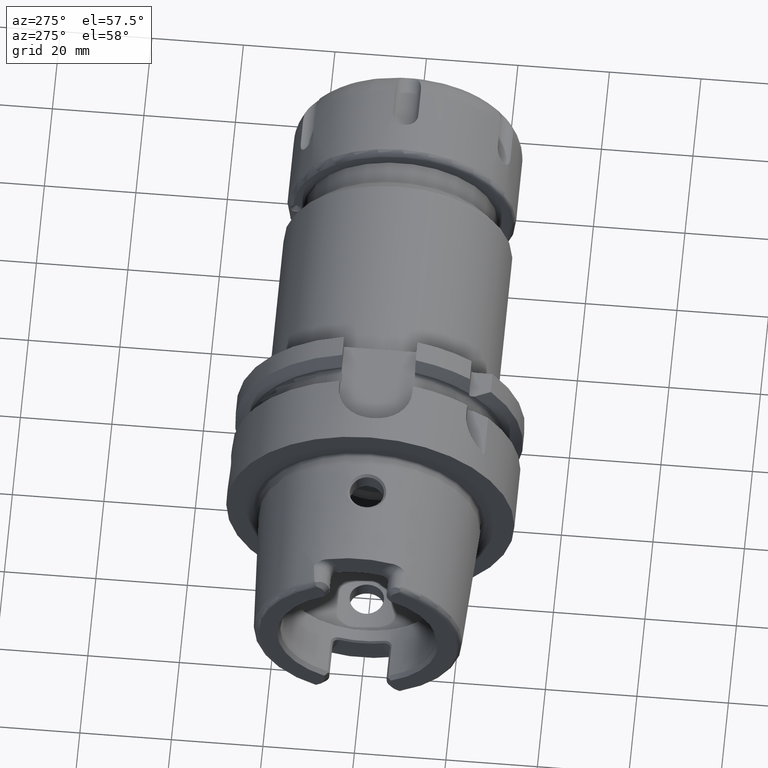
[diagram: clean part render]
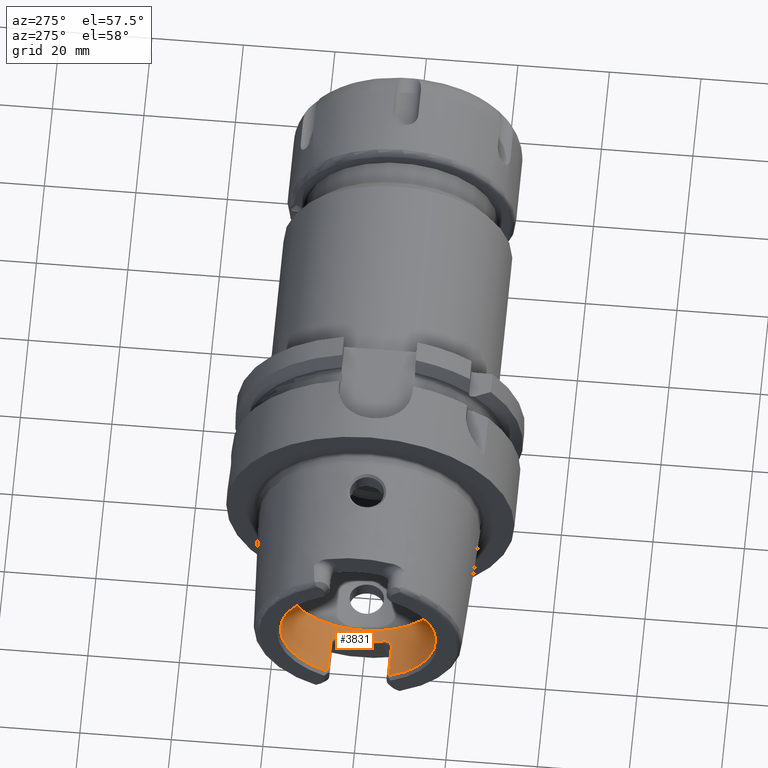
[diagram: same view with one face highlighted and labeled with its STEP entity id]
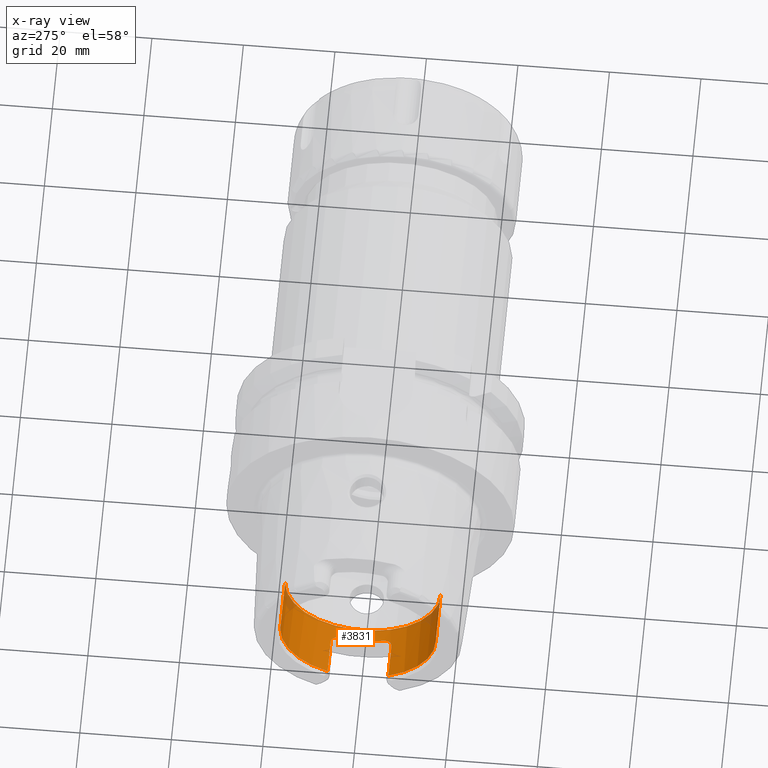
[diagram: x-ray of the same camera — body ghosted, the highlighted face saturated]
A machine part, auxiliary view. The second image highlights one B-rep face of the part: STEP entity #3831.
The next image is the same camera in x-ray: the body ghosted, the highlighted face saturated — about 5% of this face is hidden behind the body in this view.
In plain terms, the highlighted cylindrical surface (partial cylindrical patch) has radius 17 mm, axis along (1, 0, 0).
Its self-contained STEP definition (entity closure, byte-faithful):
#367=CARTESIAN_POINT('',(-3.1E1,0.E0,0.E0));
#368=DIRECTION('',(-1.E0,0.E0,0.E0));
#369=DIRECTION('',(0.E0,1.E0,0.E0));
#370=AXIS2_PLACEMENT_3D('',#367,#368,#369);
#389=CARTESIAN_POINT('',(-3.1E1,0.E0,0.E0));
#390=DIRECTION('',(-1.E0,0.E0,0.E0));
#391=DIRECTION('',(0.E0,-3.910839598454E-1,-9.203550056102E-1));
#392=AXIS2_PLACEMENT_3D('',#389,#390,#391);
#617=DIRECTION('',(1.E0,0.E0,0.E0));
#618=VECTOR('',#617,7.5E0);
#619=CARTESIAN_POINT('',(-3.1E1,-6.648427317371E0,-1.564603509537E1));
#620=LINE('',#619,#618);
#621=CARTESIAN_POINT('',(-2.171132486541E1,-4.77E0,-1.631708000838E1));
#622=CARTESIAN_POINT('',(-2.170911463045E1,-4.851899929324E0,
-1.629313806150E1));
#623=CARTESIAN_POINT('',(-2.171539985496E1,-5.014300274441E0,
-1.624433189365E1));
#624=CARTESIAN_POINT('',(-2.175723226820E1,-5.255574737127E0,
-1.616786516493E1));
#625=CARTESIAN_POINT('',(-2.183019759937E1,-5.488813832187E0,
-1.609012650164E1));
#626=CARTESIAN_POINT('',(-2.193222755914E1,-5.709311810621E0,
-1.601314455534E1));
#627=CARTESIAN_POINT('',(-2.206208908479E1,-5.913640570765E0,
-1.593873381343E1));
#628=CARTESIAN_POINT('',(-2.221579663552E1,-6.097621457296E0,
-1.586916363348E1));
#629=CARTESIAN_POINT('',(-2.239004084082E1,-6.257927374534E0,
-1.580654307494E1));
#630=CARTESIAN_POINT('',(-2.258287946713E1,-6.394281114327E0,
-1.575179653388E1));
#631=CARTESIAN_POINT('',(-2.279414325254E1,-6.504885265694E0,
-1.570637036291E1));
#632=CARTESIAN_POINT('',(-2.302072491693E1,-6.586740689310E0,
-1.567215753589E1));
#633=CARTESIAN_POINT('',(-2.325841410654E1,-6.637201205541E0,
-1.565081274977E1));
#634=CARTESIAN_POINT('',(-2.341884128981E1,-6.648427317371E0,
-1.564603509537E1));
#635=CARTESIAN_POINT('',(-2.35E1,-6.648427317371E0,-1.564603509537E1));
#637=CARTESIAN_POINT('',(-2.171132486541E1,4.77E0,-1.631708000838E1));
#638=CARTESIAN_POINT('',(-2.171132486541E1,4.151241293882E0,-1.649796280277E1));
#639=CARTESIAN_POINT('',(-2.171132889067E1,2.893125957956E0,-1.678926713017E1));
#640=CARTESIAN_POINT('',(-2.171132738120E1,9.685489423330E-1,
-1.700915920873E1));
#641=CARTESIAN_POINT('',(-2.171132738120E1,-9.685489423330E-1,
-1.700915920873E1));
#642=CARTESIAN_POINT('',(-2.171132889067E1,-2.893125957956E0,
-1.678926713017E1));
#643=CARTESIAN_POINT('',(-2.171132486541E1,-4.151241293883E0,
-1.649796280277E1));
#644=CARTESIAN_POINT('',(-2.171132486541E1,-4.77E0,-1.631708000838E1));
#646=CARTESIAN_POINT('',(-2.35E1,6.648427317371E0,-1.564603509537E1));
#647=CARTESIAN_POINT('',(-2.341886739757E1,6.648427317371E0,-1.564603509537E1));
#648=CARTESIAN_POINT('',(-2.325846026145E1,6.637216591931E0,-1.565080624648E1));
#649=CARTESIAN_POINT('',(-2.302047669465E1,6.586680175792E0,-1.567218311946E1));
#650=CARTESIAN_POINT('',(-2.279396033382E1,6.504789416100E0,-1.570640995358E1));
#651=CARTESIAN_POINT('',(-2.258322850975E1,6.394447887182E0,-1.575172726773E1));
#652=CARTESIAN_POINT('',(-2.239118887217E1,6.258799446743E0,-1.580619508840E1));
#653=CARTESIAN_POINT('',(-2.221738949273E1,6.099242016697E0,-1.586853752436E1));
#654=CARTESIAN_POINT('',(-2.206384631874E1,5.916012648985E0,-1.593785105703E1));
#655=CARTESIAN_POINT('',(-2.193366664869E1,5.711955003317E0,-1.601220141386E1));
#656=CARTESIAN_POINT('',(-2.183107108488E1,5.491206341111E0,-1.608931480424E1));
#657=CARTESIAN_POINT('',(-2.175746962839E1,5.256749499660E0,-1.616748882623E1));
#658=CARTESIAN_POINT('',(-2.171543732099E1,5.014873021211E0,-1.624415783103E1));
#659=CARTESIAN_POINT('',(-2.170911008721E1,4.852068278437E0,-1.629308884771E1));
#660=CARTESIAN_POINT('',(-2.171132486541E1,4.77E0,-1.631708000838E1));
#662=DIRECTION('',(1.E0,0.E0,0.E0));
#663=VECTOR('',#662,7.5E0);
#664=CARTESIAN_POINT('',(-3.1E1,6.648427317371E0,-1.564603509537E1));
#665=LINE('',#664,#663);
#666=DIRECTION('',(-1.E0,0.E0,0.E0));
#667=VECTOR('',#666,1.200397459622E1);
#668=CARTESIAN_POINT('',(-1.899602540378E1,1.7E1,0.E0));
#669=LINE('',#668,#667);
#670=CARTESIAN_POINT('',(-1.899602540378E1,0.E0,0.E0));
#671=DIRECTION('',(-1.E0,0.E0,0.E0));
#672=DIRECTION('',(0.E0,1.E0,0.E0));
#673=AXIS2_PLACEMENT_3D('',#670,#671,#672);
#675=DIRECTION('',(-1.E0,0.E0,0.E0));
#676=VECTOR('',#675,1.200397459622E1);
#677=CARTESIAN_POINT('',(-1.899602540378E1,-1.7E1,0.E0));
#678=LINE('',#677,#676);
#2716=CARTESIAN_POINT('',(-1.899602540378E1,1.7E1,0.E0));
#2717=VERTEX_POINT('',#2716);
#2718=CARTESIAN_POINT('',(-3.1E1,1.7E1,0.E0));
#2719=VERTEX_POINT('',#2718);
#2728=CARTESIAN_POINT('',(-1.899602540378E1,-1.7E1,0.E0));
#2729=VERTEX_POINT('',#2728);
#2730=CARTESIAN_POINT('',(-3.1E1,-1.7E1,0.E0));
#2731=VERTEX_POINT('',#2730);
#2843=CARTESIAN_POINT('',(-2.35E1,-6.648427317371E0,-1.564603509537E1));
#2844=VERTEX_POINT('',#2843);
#2845=CARTESIAN_POINT('',(-2.171132486541E1,-4.77E0,-1.631708000838E1));
#2846=VERTEX_POINT('',#2845);
#2847=CARTESIAN_POINT('',(-2.35E1,6.648427317371E0,-1.564603509537E1));
#2848=VERTEX_POINT('',#2847);
#2849=CARTESIAN_POINT('',(-2.171132486541E1,4.77E0,-1.631708000838E1));
#2850=VERTEX_POINT('',#2849);
#2851=CARTESIAN_POINT('',(-3.1E1,-6.648427317371E0,-1.564603509537E1));
#2852=VERTEX_POINT('',#2851);
#2853=CARTESIAN_POINT('',(-3.1E1,6.648427317371E0,-1.564603509537E1));
#2854=VERTEX_POINT('',#2853);
#3808=CARTESIAN_POINT('',(-3.41E1,0.E0,0.E0));
#3809=DIRECTION('',(1.E0,0.E0,0.E0));
#3810=DIRECTION('',(0.E0,-1.E0,0.E0));
#3811=AXIS2_PLACEMENT_3D('',#3808,#3809,#3810);
#3812=CYLINDRICAL_SURFACE('',#3811,1.7E1);
#3814=ORIENTED_EDGE('',*,*,#3813,.T.);
#3816=ORIENTED_EDGE('',*,*,#3815,.F.);
#3818=ORIENTED_EDGE('',*,*,#3817,.F.);
#3820=ORIENTED_EDGE('',*,*,#3819,.F.);
#3822=ORIENTED_EDGE('',*,*,#3821,.F.);
#3823=ORIENTED_EDGE('',*,*,#3418,.F.);
#3824=ORIENTED_EDGE('',*,*,#3750,.F.);
#3826=ORIENTED_EDGE('',*,*,#3825,.T.);
#3827=ORIENTED_EDGE('',*,*,#3746,.T.);
#3828=ORIENTED_EDGE('',*,*,#3434,.F.);
#3829=EDGE_LOOP('',(#3814,#3816,#3818,#3820,#3822,#3823,#3824,#3826,#3827,
#3828));
#3830=FACE_OUTER_BOUND('',#3829,.F.);
#3831=ADVANCED_FACE('',(#3830),#3812,.F.);
#371=CIRCLE('',#370,1.7E1);
#393=CIRCLE('',#392,1.7E1);
#636=B_SPLINE_CURVE_WITH_KNOTS('',3,(#621,#622,#623,#624,#625,#626,#627,#628,
#629,#630,#631,#632,#633,#634,#635),.UNSPECIFIED.,.F.,.F.,(4,1,1,1,1,1,1,1,1,1,
1,1,4),(0.E0,8.333333333333E-2,1.666666666667E-1,2.5E-1,3.333333333333E-1,
4.166666666667E-1,5.E-1,5.833333333333E-1,6.666666666667E-1,7.5E-1,
8.333333333333E-1,9.166666666667E-1,1.E0),.UNSPECIFIED.);
#645=B_SPLINE_CURVE_WITH_KNOTS('',3,(#637,#638,#639,#640,#641,#642,#643,#644),
.UNSPECIFIED.,.F.,.F.,(4,1,1,1,1,4),(0.E0,2.E-1,4.E-1,6.E-1,8.E-1,1.E0),
.UNSPECIFIED.);
#661=B_SPLINE_CURVE_WITH_KNOTS('',3,(#646,#647,#648,#649,#650,#651,#652,#653,
#654,#655,#656,#657,#658,#659,#660),.UNSPECIFIED.,.F.,.F.,(4,1,1,1,1,1,1,1,1,1,
1,1,4),(0.E0,8.333333333333E-2,1.666666666667E-1,2.5E-1,3.333333333333E-1,
4.166666666667E-1,5.E-1,5.833333333333E-1,6.666666666667E-1,7.5E-1,
8.333333333333E-1,9.166666666667E-1,1.E0),.UNSPECIFIED.);
#674=CIRCLE('',#673,1.7E1);
#3418=EDGE_CURVE('',#2719,#2854,#371,.T.);
#3434=EDGE_CURVE('',#2852,#2731,#393,.T.);
#3746=EDGE_CURVE('',#2729,#2731,#678,.T.);
#3750=EDGE_CURVE('',#2717,#2719,#669,.T.);
#3813=EDGE_CURVE('',#2852,#2844,#620,.T.);
#3815=EDGE_CURVE('',#2846,#2844,#636,.T.);
#3817=EDGE_CURVE('',#2850,#2846,#645,.T.);
#3819=EDGE_CURVE('',#2848,#2850,#661,.T.);
#3821=EDGE_CURVE('',#2854,#2848,#665,.T.);
#3825=EDGE_CURVE('',#2717,#2729,#674,.T.);